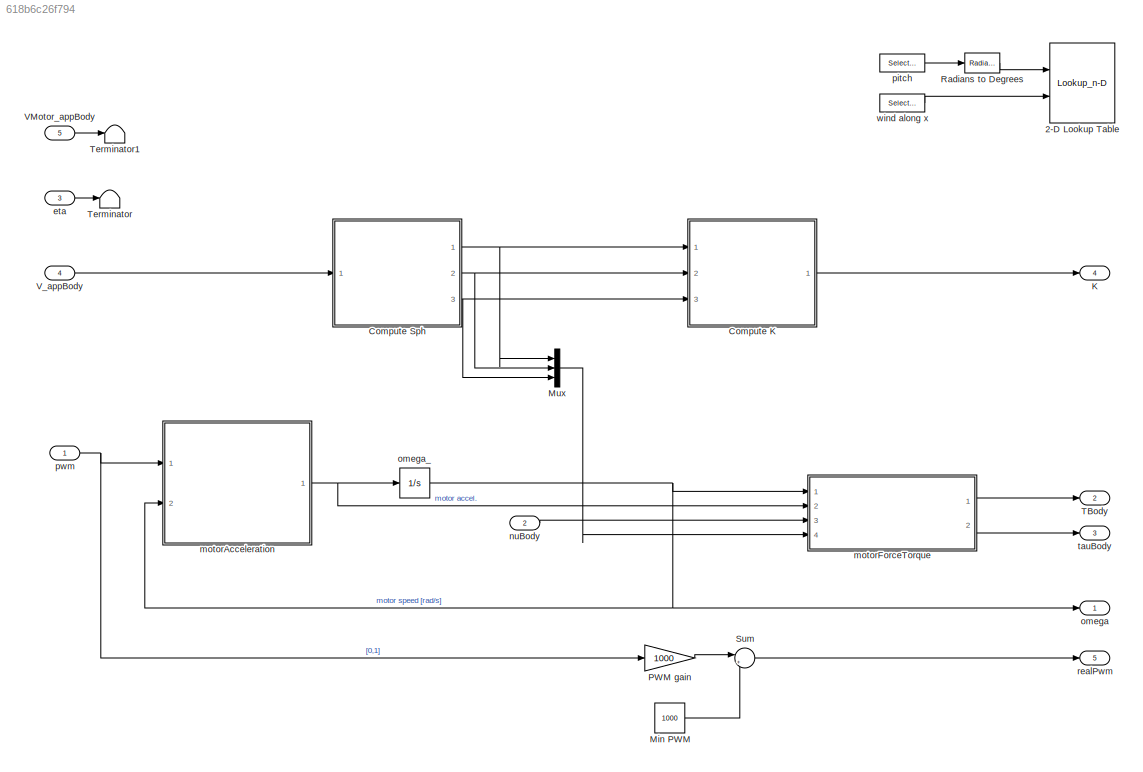
MODEL slx_618b6c26f794
KIND model
CONFIG AbsTol = auto
CONFIG EnableMultiTasking = on
CONFIG FixedStep = auto
CONFIG MaxStep = auto
CONFIG MinStep = auto
CONFIG RelTol = 1e-3
CONFIG SampleTimeConstraint = Unconstrained
CONFIG SolverName = VariableStepAuto
CONFIG StartTime = 0.0
CONFIG StopTime = 10.0
BLOCK [Lookup_n-D] 2-D Lookup Table
  BreakpointsForDimension1 = [0,2.890909,6.009259676377,9.296238414,12.27875]
  BreakpointsForDimension2 = [0,10,20]
  Commented = on
  InputPortMap = u0,u1
  InternalRulePriority = Speed
  Ports = [2, 1]
  RndMeth = Simplest
  Table = reshape([9.55641004221352e-06,1.00990801427108e-05,1.28091919414946e-05,1.45562427543497e-05,1.63017404112369e-05,1.00884339028815e-05,1.06718323589317e-05,1.12577089455794e-05,1.21229824131359e-05,1.24606394544993e-05,9.47230336229989e-06,9.71233115660863e-06,9.65341998978562e-06,9.60249125674676e-06,8.92828582195144e-06],5,3)
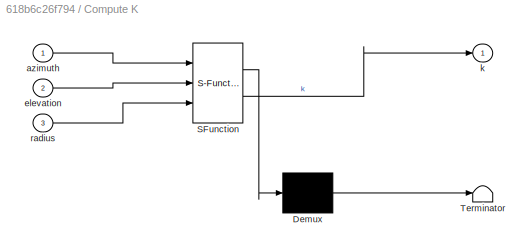
BLOCK [SubSystem] Compute K
  ErrorFcn = Stateflow.Translate.translate
  PermitHierarchicalResolution = ExplicitOnly
  Ports = [3, 1]
  RequestExecContextInheritance = off
  SFBlockType = MATLAB Function
  TreatAsAtomicUnit = on
BLOCK [Demux] Compute K/ Demux 
  Outputs = 1
  Ports = [1, 1]
BLOCK [S-Function] Compute K/ SFunction 
  EnableBusSupport = on
  FunctionName = sf_sfun
  PortCounts = [3 2]
  Ports = [3, 2]
  SFcnIsStateOwnerBlock = off
  SFunctionDeploymentMode = off
  Tag = Stateflow S-Function 2
BLOCK [Terminator] Compute K/ Terminator 
BLOCK [Inport] Compute K/azimuth
BLOCK [Inport] Compute K/elevation
  Port = 2
BLOCK [Outport] Compute K/k
  VectorParamsAs1DForOutWhenUnconnected = off
BLOCK [Inport] Compute K/radius
  Port = 3
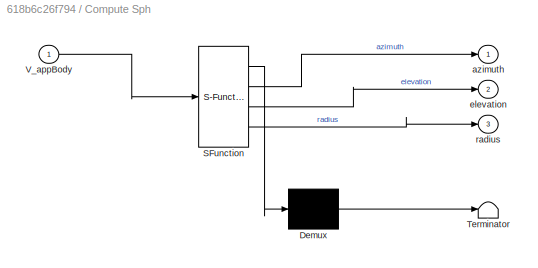
BLOCK [SubSystem] Compute Sph
  ErrorFcn = Stateflow.Translate.translate
  PermitHierarchicalResolution = ExplicitOnly
  Ports = [1, 3]
  RequestExecContextInheritance = off
  SFBlockType = MATLAB Function
  TreatAsAtomicUnit = on
BLOCK [Demux] Compute Sph/ Demux 
  Outputs = 1
  Ports = [1, 1]
BLOCK [S-Function] Compute Sph/ SFunction 
  EnableBusSupport = on
  FunctionName = sf_sfun
  PortCounts = [1 4]
  Ports = [1, 4]
  SFcnIsStateOwnerBlock = off
  SFunctionDeploymentMode = off
  Tag = Stateflow S-Function 1
BLOCK [Terminator] Compute Sph/ Terminator 
BLOCK [Inport] Compute Sph/V_appBody
BLOCK [Outport] Compute Sph/azimuth
  VectorParamsAs1DForOutWhenUnconnected = off
BLOCK [Outport] Compute Sph/elevation
  Port = 2
  VectorParamsAs1DForOutWhenUnconnected = off
BLOCK [Outport] Compute Sph/radius
  Port = 3
  VectorParamsAs1DForOutWhenUnconnected = off
BLOCK [Outport] K
  Port = 4
  VectorParamsAs1DForOutWhenUnconnected = off
BLOCK [Constant] Min PWM
  Value = 1000
BLOCK [Mux] Mux
  DisplayOption = bar
  Inputs = 3
  Ports = [3, 1]
BLOCK [Gain] PWM gain
  Gain = 1000
BLOCK [Reference] Radians to Degrees  REF=simulink_extras/Transformations/Radians
to Degrees
  Commented = on
  Ports = [1, 1]
  SourceBlock = simulink_extras/Transformations/Radians\nto Degrees
  SourceProductBaseCode = SL
  SourceType = RadiansToDegrees
BLOCK [Sum] Sum
  Inputs = |++
  Ports = [2, 1]
BLOCK [Outport] TBody
  Port = 2
  VectorParamsAs1DForOutWhenUnconnected = off
BLOCK [Terminator] Terminator
BLOCK [Terminator] Terminator1
BLOCK [Inport] VMotor_appBody
  Port = 5
  PortDimensions = [3,4]
BLOCK [Inport] V_appBody
  Port = 4
  PortDimensions = 3
BLOCK [Inport] eta
  Port = 3
  PortDimensions = 3
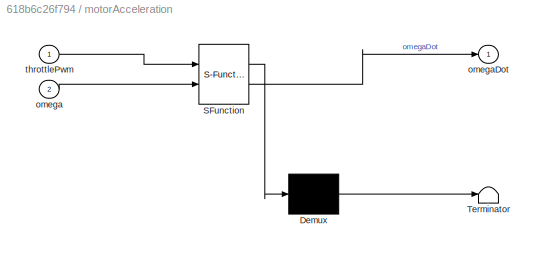
BLOCK [SubSystem] motorAcceleration
  ErrorFcn = Stateflow.Translate.translate
  PermitHierarchicalResolution = ExplicitOnly
  Ports = [2, 1]
  RequestExecContextInheritance = off
  SFBlockType = MATLAB Function
  TreatAsAtomicUnit = on
BLOCK [Demux] motorAcceleration/ Demux 
  Outputs = 1
  Ports = [1, 1]
BLOCK [S-Function] motorAcceleration/ SFunction 
  EnableBusSupport = on
  FunctionName = sf_sfun
  Parameters = Motor,Uav
  PortCounts = [2 2]
  Ports = [2, 2]
  SFcnIsStateOwnerBlock = off
  SFunctionDeploymentMode = off
  Tag = Stateflow S-Function 19
BLOCK [Terminator] motorAcceleration/ Terminator 
BLOCK [Inport] motorAcceleration/omega
  Port = 2
BLOCK [Outport] motorAcceleration/omegaDot
  VectorParamsAs1DForOutWhenUnconnected = off
BLOCK [Inport] motorAcceleration/throttlePwm
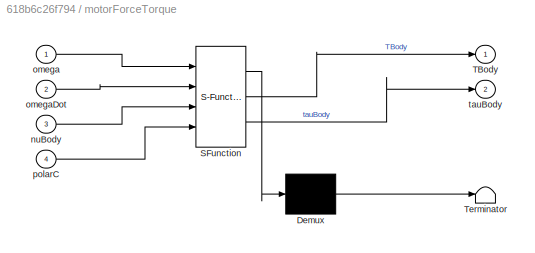
BLOCK [SubSystem] motorForceTorque
  ErrorFcn = Stateflow.Translate.translate
  PermitHierarchicalResolution = ExplicitOnly
  Ports = [4, 2]
  RequestExecContextInheritance = off
  SFBlockType = MATLAB Function
  TreatAsAtomicUnit = on
BLOCK [Demux] motorForceTorque/ Demux 
  Outputs = 1
  Ports = [1, 1]
BLOCK [S-Function] motorForceTorque/ SFunction 
  EnableBusSupport = on
  FunctionName = sf_sfun
  Parameters = Motor,Uav
  PortCounts = [4 3]
  Ports = [4, 3]
  SFcnIsStateOwnerBlock = off
  SFunctionDeploymentMode = off
  Tag = Stateflow S-Function 18
BLOCK [Terminator] motorForceTorque/ Terminator 
BLOCK [Outport] motorForceTorque/TBody
  VectorParamsAs1DForOutWhenUnconnected = off
BLOCK [Inport] motorForceTorque/nuBody
  Port = 3
BLOCK [Inport] motorForceTorque/omega
BLOCK [Inport] motorForceTorque/omegaDot
  Port = 2
BLOCK [Inport] motorForceTorque/polarC
  Port = 4
BLOCK [Outport] motorForceTorque/tauBody
  Port = 2
  VectorParamsAs1DForOutWhenUnconnected = off
BLOCK [Inport] nuBody
  Port = 2
BLOCK [Outport] omega
  VectorParamsAs1DForOutWhenUnconnected = off
BLOCK [Integrator] omega_
  InitialCondition = Initial.OMEGA
  Ports = [1, 1]
BLOCK [Selector] pitch
  Commented = on
  IndexOptions = Index vector (dialog)
  Indices = [2]
  InputPortWidth = 3
  OutputSizes = 1
  Ports = [1, 1]
BLOCK [Inport] pwm
  PortDimensions = Uav.N_ROTORS
BLOCK [Outport] realPwm
  Port = 5
  VectorParamsAs1DForOutWhenUnconnected = off
BLOCK [Outport] tauBody
  Port = 3
  VectorParamsAs1DForOutWhenUnconnected = off
BLOCK [Selector] wind along x
  Commented = on
  IndexOptions = Index vector (dialog)
  Indices = [1]
  InputPortWidth = 3
  OutputSizes = 1
  Ports = [1, 1]
LINE Compute K:1 -> K:1
NET Compute Sph:1 -> Compute K:1, Mux:1
NET Compute Sph:2 -> Compute K:2, Mux:2
NET Compute Sph:3 -> Compute K:3, Mux:3
LINE Min PWM:1 -> Sum:2
LINE Mux:1 -> motorForceTorque:4
LINE PWM gain:1 -> Sum:1
LINE Radians to Degrees:1 -> 2-D Lookup Table:1
LINE Sum:1 -> realPwm:1
LINE VMotor_appBody:1 -> Terminator1:1
LINE V_appBody:1 -> Compute Sph:1
LINE eta:1 -> Terminator:1
NET motorAcceleration:1 -> motorForceTorque:2, omega_:1
LINE motorForceTorque:1 -> TBody:1
LINE motorForceTorque:2 -> tauBody:1
LINE nuBody:1 -> motorForceTorque:3
NET omega_:1 -> motorAcceleration:2, motorForceTorque:1, omega:1
LINE pitch:1 -> Radians to Degrees:1
NET pwm:1 -> PWM gain:1, motorAcceleration:1
LINE wind along x:1 -> 2-D Lookup Table:2
note: NET lines group one-source signal fan-out (src -> all destinations, sorted); 1:1 wires keep LINE
CHART Compute Sph states=1 transitions=1
  STATE_LABEL 'eML_blk_kernel()'
  STATE_LABEL 'SCRIPT:\nfunction [azimuth, elevation, radius] = computeSph(V_appBody)\n%#codegen\n\n% Convert from polar to spherical coordinates\n[ azimuth, elevation, radius ] = cart2sph( V_appBody(1), V_appBody(2), V_appBody(3) );'
CHART Compute K states=1 transitions=1
  STATE_LABEL 'eML_blk_kernel()'
  STATE_LABEL "SCRIPT:\nfunction k  = computeK( azimuth, elevation, radius )\n%#codegen\n\n% Margin to prevent shattering - doesn't seem to work\n% for i = 1:3\n%     if ( ( V_appBody(i) > -0.002 ) && ( V_appBody(i) < 0.002 ) )\n%         V_appBody(i) = 0;\n%     end\n% end\n\n% % Convert from polar to spherical coordinates\n% [ azimuth, elevation, radius ] = cart2sph( V_appBody(1), V_appBody(2), V_appBody(3) );\n\nelevation ...<+587ch>"
CHART motorForceTorque states=1 transitions=1
  STATE_LABEL 'eML_blk_kernel()'
  STATE_LABEL 'SCRIPT:\nfunction [TBody, tauBody] = motorForceTorque(...\n    omega, omegaDot, nuBody, Motor, Uav, polarC)\n%#codegen\n\nelevation = polarC(2);\nwindSpeed = polarC(3);\n\n% Make assertions to avoid code generation errors\nassert(Uav.N_ROTORS < 16);\n\n%% Thrust and differential torque\n\n% Concatenated motor force/torque vectors in respective motor frame\n% eg. TMotor = [TMotor1, TMotor2, ..., TMotorN]\n% where...<+2418ch>'
CHART motorAcceleration states=1 transitions=1
  STATE_LABEL 'eML_blk_kernel()'
  STATE_LABEL 'SCRIPT:\nfunction omegaDot = motorAcceleration(throttlePwm, omega, Motor, Uav)\n%#codegen\n\nvoltage = throttlePwm * Uav.NOMINAL_BATTERY_VOLTAGE;\n\n% Motor current ignoring inductance\ncurrent = (voltage - Motor.K_E*omega) / Motor.R;\n\nnetTorque = (Motor.K_T * current) - (Motor.B * omega.^2);\n\n% Motor angular acceleration\nomegaDot = netTorque / Motor.I_R(3,3);'
CHART  states=0 transitions=0
CHART  states=0 transitions=0
CHART  states=0 transitions=0
CHART  states=0 transitions=0
